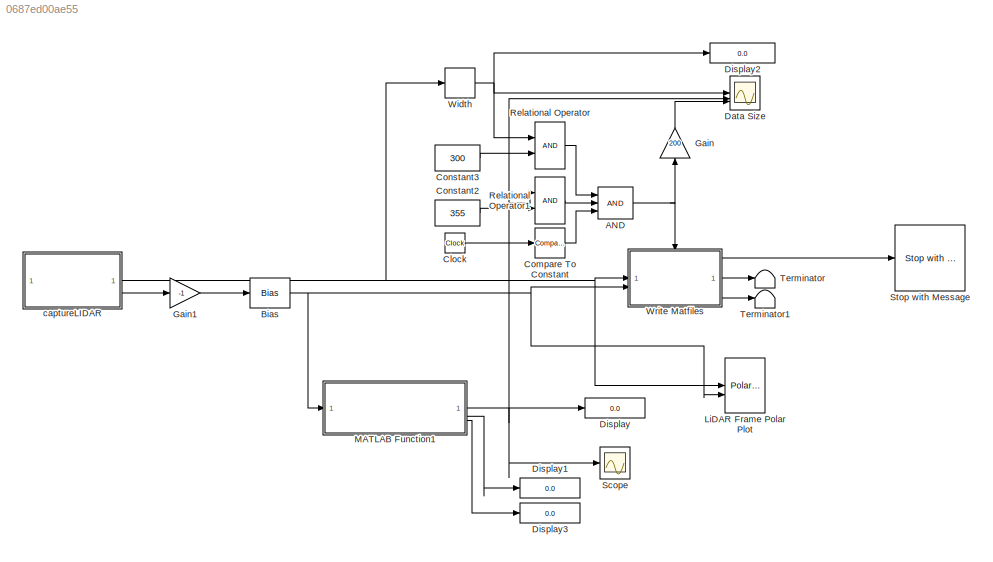
MODEL slx_0687ed00ae55
KIND model
CONFIG AbsTol = auto
CONFIG EnableMultiTasking = on
CONFIG FixedStep = 1/15
CONFIG MaxStep = auto
CONFIG MinStep = auto
CONFIG RelTol = 1e-3
CONFIG SampleTimeConstraint = Unconstrained
CONFIG SolverName = ode1
CONFIG StartTime = 0.0
CONFIG StopTime = inf
BLOCK [Logic] AND
  AllPortsSameDT = off
  IconShape = distinctive
  Inputs = 3
  OutDataTypeStr = boolean
BLOCK [Bias] Bias
  Bias = -pi +0*pi/180
  SaturateOnIntegerOverflow = off
BLOCK [Clock] Clock
BLOCK [Reference] Compare To Constant  REF=simulink/Logic and Bit
Operations/Compare
To Constant
  SourceBlock = simulink/Logic and Bit\nOperations/Compare\nTo Constant
  SourceType = Compare To Constant
BLOCK [Constant] Constant2
  Value = 355
BLOCK [Constant] Constant3
  Value = 300
BLOCK [Scope] Data Size
  Floating = off
  NumInputPorts = 3
  ScopeSpecificationString = Simulink.scopes.TimeScopeBlockCfg('CurrentConfiguration', extmgr.ConfigurationSet(extmgr.Configuration('Core','General UI',true),extmgr.Configuration('Core','Source UI',true),extmgr.Configuration('Sources','WiredSimulink',true,'DataLoggingVariableName','ScopeData1'),extmgr.Configuration('Visuals','Time Domain',true,'SerializedDisplays',{struct('MinYLimReal','-60.00000','MaxYLimReal','540.00000','Y...<+1475ch>
BLOCK [Display] Display
  Decimation = 1
BLOCK [Display] Display1
  Decimation = 1
BLOCK [Display] Display2
  Decimation = 1
  NameLocation = top
BLOCK [Display] Display3
  Decimation = 1
BLOCK [Gain] Gain
  Gain = 200
  NameLocation = right
BLOCK [Gain] Gain1
  Gain = -1
BLOCK [Reference] LiDAR Frame Polar Plot  REF=quarc_library/Sinks/Figures/Polar Figure
  SourceBlock = quarc_library/Sinks/Figures/Polar Figure
  SourceProductName = QUARC Targets
  SourceType = Polar Figure
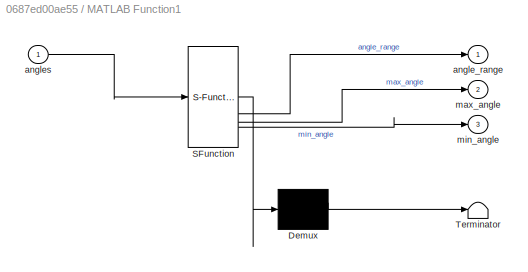
BLOCK [SubSystem] MATLAB Function1
  ErrorFcn = Stateflow.Translate.translate
  PermitHierarchicalResolution = ExplicitOnly
  SFBlockType = MATLAB Function
  TreatAsAtomicUnit = on
BLOCK [Demux] MATLAB Function1/ Demux 
  Outputs = 1
BLOCK [S-Function] MATLAB Function1/ SFunction 
  EnableBusSupport = on
  FunctionName = sf_sfun
  PortCounts = [1 4]
  SFcnIsStateOwnerBlock = off
  SFunctionDeploymentMode = off
  Tag = Stateflow S-Function 4
BLOCK [Terminator] MATLAB Function1/ Terminator 
BLOCK [Outport] MATLAB Function1/angle_range
BLOCK [Inport] MATLAB Function1/angles
BLOCK [Outport] MATLAB Function1/max_angle
  Port = 2
BLOCK [Outport] MATLAB Function1/min_angle
  Port = 3
BLOCK [RelationalOperator] Relational Operator
  InputSameDT = off
  OutDataTypeStr = boolean
  RndMeth = Simplest
BLOCK [RelationalOperator] Relational Operator1
  InputSameDT = off
  OutDataTypeStr = boolean
  RndMeth = Simplest
BLOCK [Scope] Scope
  Floating = off
  NumInputPorts = 1
  ScopeSpecificationString = Simulink.scopes.TimeScopeBlockCfg('CurrentConfiguration', extmgr.ConfigurationSet(extmgr.Configuration('Core','General UI',true),extmgr.Configuration('Core','Source UI',true),extmgr.Configuration('Sources','WiredSimulink',true,'DataLoggingVariableName','ScopeData2'),extmgr.Configuration('Visuals','Time Domain',true,'SerializedDisplays',{struct('MinYLimReal','-44.94336','MaxYLimReal','404.49023','Y...<+1472ch>
BLOCK [Reference] Stop with Message  REF=quarc_library/Sinks/Error Handling/Stop with Message
  AttributesFormatString = "%<message>"
  NameLocation = top
  SourceBlock = quarc_library/Sinks/Error Handling/Stop with Message
  SourceProductName = QUARC Targets
  SourceType = Stop with Message
BLOCK [Terminator] Terminator
BLOCK [Terminator] Terminator1
BLOCK [Width] Width
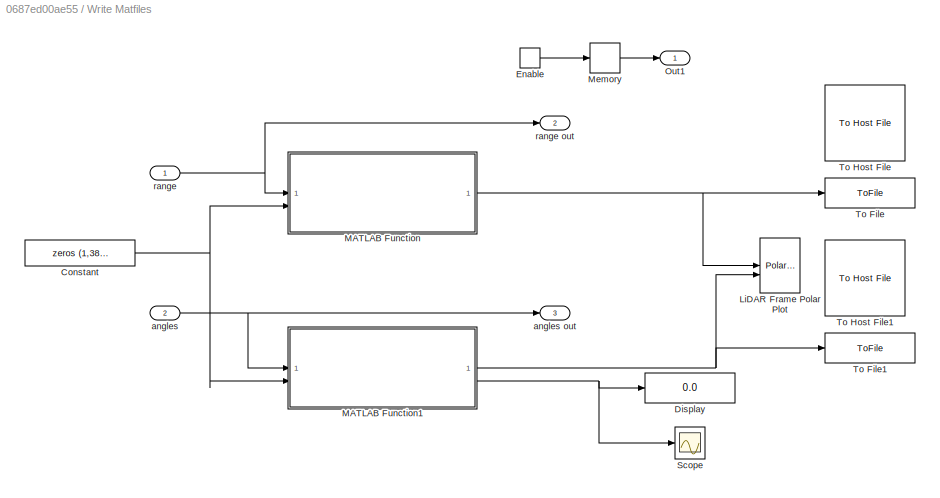
BLOCK [SubSystem] Write Matfiles
  TreatAsAtomicUnit = on
BLOCK [Constant] Write Matfiles/Constant
  Value = zeros (1,384)
BLOCK [Display] Write Matfiles/Display
  Decimation = 1
BLOCK [EnablePort] Write Matfiles/Enable
  PropagateVarSize = During execution
  ShowOutputPort = on
BLOCK [Reference] Write Matfiles/LiDAR Frame Polar Plot  REF=quarc_library/Sinks/Figures/Polar Figure
  SourceBlock = quarc_library/Sinks/Figures/Polar Figure
  SourceProductName = QUARC Targets
  SourceType = Polar Figure
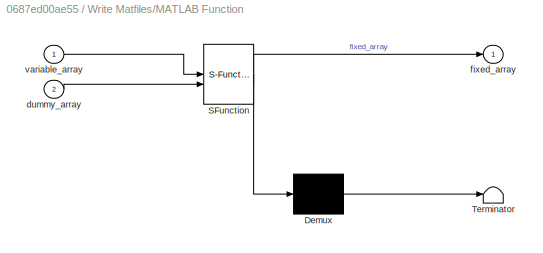
BLOCK [SubSystem] Write Matfiles/MATLAB Function
  ErrorFcn = Stateflow.Translate.translate
  PermitHierarchicalResolution = ExplicitOnly
  SFBlockType = MATLAB Function
  TreatAsAtomicUnit = on
BLOCK [Demux] Write Matfiles/MATLAB Function/ Demux 
  Outputs = 1
BLOCK [S-Function] Write Matfiles/MATLAB Function/ SFunction 
  EnableBusSupport = on
  FunctionName = sf_sfun
  PortCounts = [2 2]
  SFcnIsStateOwnerBlock = off
  SFunctionDeploymentMode = off
  Tag = Stateflow S-Function 1
BLOCK [Terminator] Write Matfiles/MATLAB Function/ Terminator 
BLOCK [Inport] Write Matfiles/MATLAB Function/dummy_array
  Port = 2
BLOCK [Outport] Write Matfiles/MATLAB Function/fixed_array
  VectorParamsAs1DForOutWhenUnconnected = off
BLOCK [Inport] Write Matfiles/MATLAB Function/variable_array
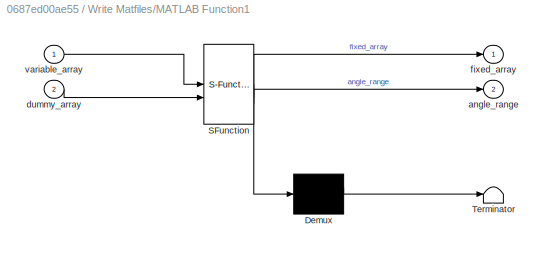
BLOCK [SubSystem] Write Matfiles/MATLAB Function1
  ErrorFcn = Stateflow.Translate.translate
  PermitHierarchicalResolution = ExplicitOnly
  SFBlockType = MATLAB Function
  TreatAsAtomicUnit = on
BLOCK [Demux] Write Matfiles/MATLAB Function1/ Demux 
  Outputs = 1
BLOCK [S-Function] Write Matfiles/MATLAB Function1/ SFunction 
  EnableBusSupport = on
  FunctionName = sf_sfun
  PortCounts = [2 3]
  SFcnIsStateOwnerBlock = off
  SFunctionDeploymentMode = off
  Tag = Stateflow S-Function 3
BLOCK [Terminator] Write Matfiles/MATLAB Function1/ Terminator 
BLOCK [Outport] Write Matfiles/MATLAB Function1/angle_range
  Port = 2
BLOCK [Inport] Write Matfiles/MATLAB Function1/dummy_array
  Port = 2
BLOCK [Outport] Write Matfiles/MATLAB Function1/fixed_array
  VectorParamsAs1DForOutWhenUnconnected = off
BLOCK [Inport] Write Matfiles/MATLAB Function1/variable_array
BLOCK [Memory] Write Matfiles/Memory
BLOCK [Outport] Write Matfiles/Out1
BLOCK [Scope] Write Matfiles/Scope
  Floating = off
  NumInputPorts = 1
  ScopeSpecificationString = Simulink.scopes.TimeScopeBlockCfg('CurrentConfiguration', extmgr.ConfigurationSet(extmgr.Configuration('Core','General UI',true),extmgr.Configuration('Core','Source UI',true),extmgr.Configuration('Sources','WiredSimulink',true,'DataLoggingVariableName','ScopeData1'),extmgr.Configuration('Visuals','Time Domain',true,'SerializedDisplays',{struct('MinYLimReal','0','MaxYLimReal','359.84375','YLabelRea...<+1459ch>
BLOCK [ToFile] Write Matfiles/To File
  Filename = distance_new.mat
  MatrixName = distances
BLOCK [ToFile] Write Matfiles/To File1
  Filename = angles_new.mat
  MatrixName = angles
BLOCK [Reference] Write Matfiles/To Host File  REF=quarc_library/Sinks/To Host/To Host File
  AttributesFormatString = %<final_file_name>
  Commented = on
  SourceBlock = quarc_library/Sinks/To Host/To Host File
  SourceProductName = QUARC Targets
  SourceType = To Host File
BLOCK [Reference] Write Matfiles/To Host File1  REF=quarc_library/Sinks/To Host/To Host File
  AttributesFormatString = %<final_file_name>
  Commented = on
  SourceBlock = quarc_library/Sinks/To Host/To Host File
  SourceProductName = QUARC Targets
  SourceType = To Host File
BLOCK [Inport] Write Matfiles/angles
  Port = 2
BLOCK [Outport] Write Matfiles/angles out
  Port = 3
BLOCK [Inport] Write Matfiles/range
BLOCK [Outport] Write Matfiles/range out
  Port = 2
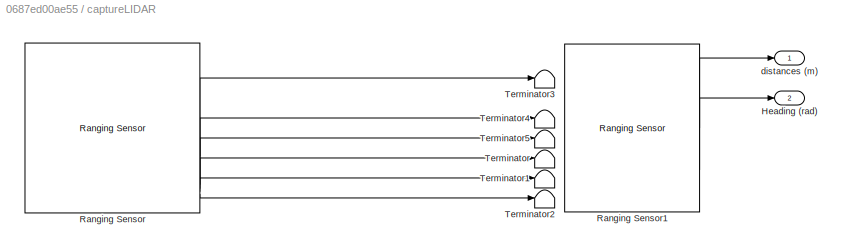
BLOCK [SubSystem] captureLIDAR
BLOCK [Outport] captureLIDAR/Heading (rad)
  Port = 2
  VectorParamsAs1DForOutWhenUnconnected = off
BLOCK [Reference] captureLIDAR/Ranging  Sensor1  REF=quarc_library/Devices/Third-Party/Sensors/Ranging Sensor
  SourceBlock = quarc_library/Devices/Third-Party/Sensors/Ranging Sensor
  SourceProductName = QUARC Targets
  SourceType = Ranging Sensor
BLOCK [Reference] captureLIDAR/Ranging Sensor  REF=quarc_library/Devices/Third-Party/Sensors/Ranging Sensor
  Commented = on
  SourceBlock = quarc_library/Devices/Third-Party/Sensors/Ranging Sensor
  SourceProductName = QUARC Targets
  SourceType = Ranging Sensor
BLOCK [Terminator] captureLIDAR/Terminator
BLOCK [Terminator] captureLIDAR/Terminator1
BLOCK [Terminator] captureLIDAR/Terminator2
BLOCK [Terminator] captureLIDAR/Terminator3
BLOCK [Terminator] captureLIDAR/Terminator4
BLOCK [Terminator] captureLIDAR/Terminator5
BLOCK [Outport] captureLIDAR/distances (m)
  VectorParamsAs1DForOutWhenUnconnected = off
NET AND:1 -> Gain:1, Write Matfiles:enable
NET Bias:1 -> LiDAR Frame Polar Plot:2, MATLAB Function1:1, Write Matfiles:2
LINE Clock:1 -> Compare To Constant:1
LINE Compare To Constant:1 -> AND:3
LINE Constant2:1 -> Relational Operator1:2
LINE Constant3:1 -> Relational Operator:2
LINE Gain1:1 -> Bias:1
LINE Gain:1 -> Data Size:3
NET MATLAB Function1:1 -> Data Size:2, Display:1, Relational Operator1:1, Scope:1
LINE MATLAB Function1:2 -> Display1:1
LINE MATLAB Function1:3 -> Display3:1
LINE Relational Operator1:1 -> AND:2
LINE Relational Operator:1 -> AND:1
NET Width:1 -> Data Size:1, Display2:1, Relational Operator:1
NET Write Matfiles/Constant:1 -> Write Matfiles/MATLAB Function1:2, Write Matfiles/MATLAB Function:2
LINE Write Matfiles/Enable:1 -> Write Matfiles/Memory:1
NET Write Matfiles/MATLAB Function1:1 -> Write Matfiles/LiDAR Frame Polar Plot:2, Write Matfiles/To File1:1
NET Write Matfiles/MATLAB Function1:2 -> Write Matfiles/Display:1, Write Matfiles/Scope:1
NET Write Matfiles/MATLAB Function:1 -> Write Matfiles/LiDAR Frame Polar Plot:1, Write Matfiles/To File:1
LINE Write Matfiles/Memory:1 -> Write Matfiles/Out1:1
NET Write Matfiles/angles:1 -> Write Matfiles/MATLAB Function1:1, Write Matfiles/angles out:1
NET Write Matfiles/range:1 -> Write Matfiles/MATLAB Function:1, Write Matfiles/range out:1
LINE Write Matfiles:1 -> Stop with Message:1
LINE Write Matfiles:2 -> Terminator:1
LINE Write Matfiles:3 -> Terminator1:1
LINE captureLIDAR/Ranging  Sensor1:1 -> captureLIDAR/distances (m):1
LINE captureLIDAR/Ranging  Sensor1:3 -> captureLIDAR/Heading (rad):1
LINE captureLIDAR/Ranging Sensor:2 -> captureLIDAR/Terminator3:1
LINE captureLIDAR/Ranging Sensor:4 -> captureLIDAR/Terminator4:1
LINE captureLIDAR/Ranging Sensor:5 -> captureLIDAR/Terminator5:1
LINE captureLIDAR/Ranging Sensor:6 -> captureLIDAR/Terminator:1
LINE captureLIDAR/Ranging Sensor:7 -> captureLIDAR/Terminator1:1
LINE captureLIDAR/Ranging Sensor:8 -> captureLIDAR/Terminator2:1
NET captureLIDAR:1 -> LiDAR Frame Polar Plot:1, Width:1, Write Matfiles:1
LINE captureLIDAR:2 -> Gain1:1
note: NET lines group one-source signal fan-out (src -> all destinations, sorted); 1:1 wires keep LINE
CHART Write Matfiles/MATLAB Function states=1 transitions=1
  STATE_LABEL 'eML_blk_kernel()'
  STATE_LABEL 'SCRIPT:\nfunction fixed_array = make_fixed (variable_array, dummy_array)\nfixed_array = dummy_array;\nfor i = 1:length (variable_array)\n    fixed_array(i) = variable_array (i);\nend\n'
CHART Write Matfiles/MATLAB Function1 states=1 transitions=1
  STATE_LABEL 'eML_blk_kernel()'
  STATE_LABEL 'SCRIPT:\nfunction [fixed_array, angle_range] = make_fixed (variable_array, dummy_array)\nfixed_array = dummy_array;\nangle_range = 0;\nfor i = 1:length (variable_array)\n    fixed_array(i) = variable_array (i);\nend\n% angle_range = variable_array(length (variable_array)) - variable_array(1);\nangle_range = max (variable_array) - min(variable_array);\nangle_range = 180/pi*angle_range;'
CHART MATLAB Function1 states=1 transitions=1
  STATE_LABEL 'eML_blk_kernel()'
  STATE_LABEL 'SCRIPT:\nfunction [angle_range,max_angle,min_angle] = find_angle_range (angles)\nangle_range = 0;\nangle_range = max (angles) - min(angles);\nangle_range = 180/pi*angle_range;\nmax_angle=max (angles);\nmin_angle=min(angles);\n'
CHART  states=0 transitions=0
CHART  states=0 transitions=0
CHART  states=0 transitions=0
